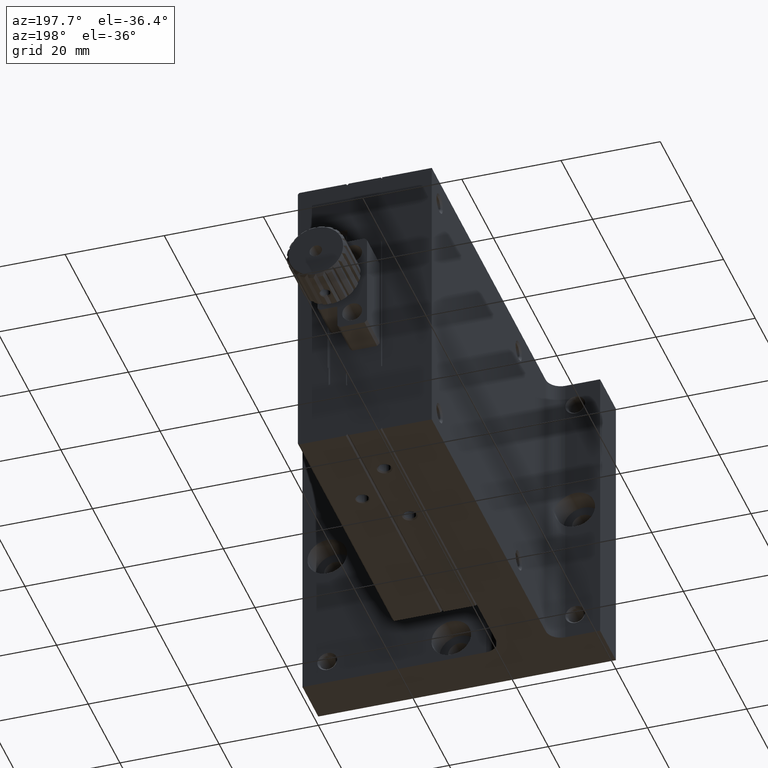
[diagram: clean part render]
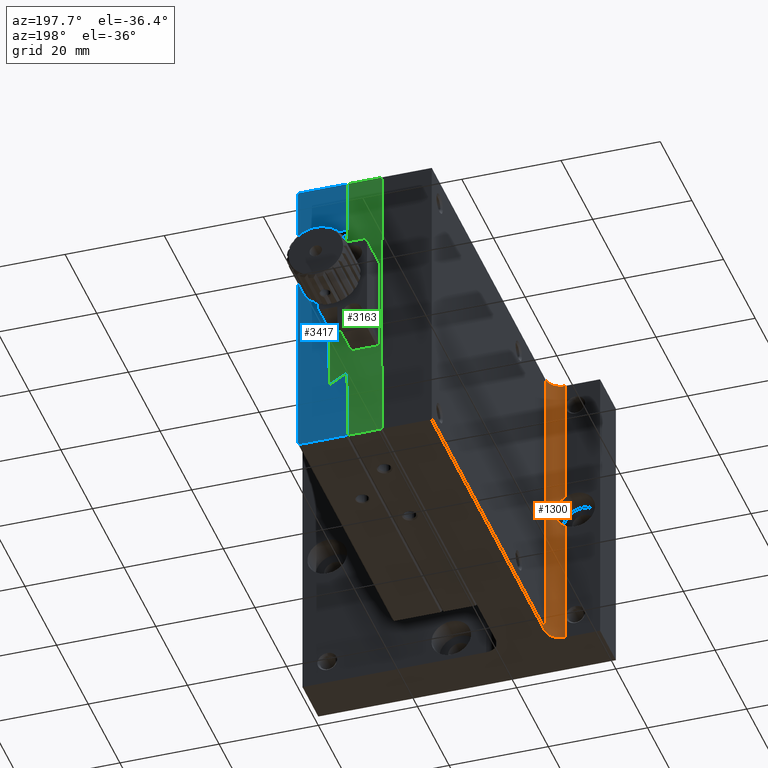
[diagram: same view with three faces highlighted in distinct colors, each labeled with its STEP entity id]
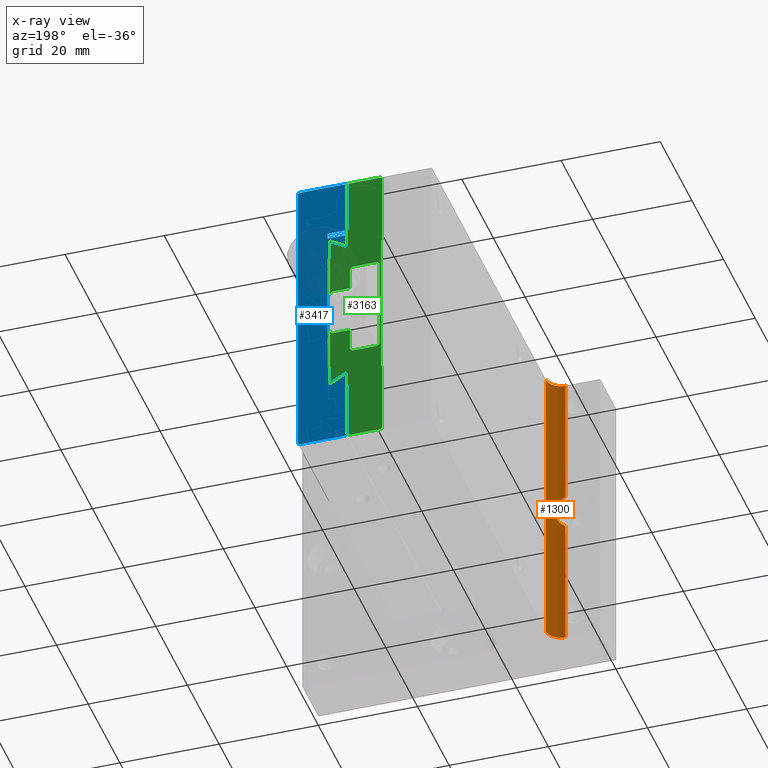
[diagram: x-ray of the same camera — body ghosted, the three highlighted faces saturated]
A machine part, auxiliary view with three faces highlighted in distinct colors.
The next image is the same camera in x-ray (body ghosted, the three faces saturated) — at least one of them is partly hidden behind the body in this view.
Their STEP definitions:

[orange] entity #1300 — the highlighted cylindrical surface (edge-blend (fillet) strip) has radius 3 mm, axis along (0, 0, 1).
#27 = EDGE_LOOP ( 'NONE', ( #8266, #9551, #5076, #129, #2946, #8076 ) ) ;
#129 = ORIENTED_EDGE ( 'NONE', *, *, #3257, .F. ) ;
#340 = FACE_OUTER_BOUND ( 'NONE', #27, .T. ) ;
#425 = DIRECTION ( 'NONE',  ( -0.000000000000000000, 0.000000000000000000, -1.000000000000000000 ) ) ;
#468 = CARTESIAN_POINT ( 'NONE',  ( 8.076887975370846462, 10.19765229357674485, -32.56169483567061462 ) ) ;
#578 = CARTESIAN_POINT ( 'NONE',  ( 8.940000019769701822, 10.71146632080361094, -29.28750962912575062 ) ) ;
#684 = CARTESIAN_POINT ( 'NONE',  ( 8.381142142787478377, 10.33501487928638518, -32.14418952201488366 ) ) ;
#940 = DIRECTION ( 'NONE',  ( 1.000000000000000000, 0.000000000000000000, 0.000000000000000000 ) ) ;
#1295 = CARTESIAN_POINT ( 'NONE',  ( 6.999999999999988454, 9.999999999999994671, -33.46410161513775705 ) ) ;
#1300 = ADVANCED_FACE ( 'NONE', ( #340 ), #6798, .F. ) ;
#1336 = CARTESIAN_POINT ( 'NONE',  ( 6.999999999999995559, 10.00000000000000000, -26.53589838486224295 ) ) ;
#1356 = VECTOR ( 'NONE', #3973, 1000.000000000000000 ) ;
#1937 = VERTEX_POINT ( 'NONE', #6447 ) ;
#2099 = CARTESIAN_POINT ( 'NONE',  ( 7.312159122410757384, 9.999999999999985789, -33.28387646178390469 ) ) ;
#2259 = CARTESIAN_POINT ( 'NONE',  ( 8.084193772606303341, 10.19093644093117135, -27.42885353740401300 ) ) ;
#2320 = CARTESIAN_POINT ( 'NONE',  ( 8.999841932630252117, 10.76379064294338939, -29.81888667577856467 ) ) ;
#2677 = DIRECTION ( 'NONE',  ( 0.000000000000000000, 0.000000000000000000, 1.000000000000000000 ) ) ;
#2911 = DIRECTION ( 'NONE',  ( 1.000000000000000000, -1.156482317317866992E-15, 0.000000000000000000 ) ) ;
#2946 = ORIENTED_EDGE ( 'NONE', *, *, #4669, .F. ) ;
#2974 = CARTESIAN_POINT ( 'NONE',  ( 7.597069705246282112, 10.04899120887526820, -33.06203030189791292 ) ) ;
#3136 = CARTESIAN_POINT ( 'NONE',  ( 8.987488742780781692, 10.75258482366023394, -29.63781743475101393 ) ) ;
#3257 = EDGE_CURVE ( 'NONE', #9720, #4130, #8382, .T. ) ;
#3330 = EDGE_CURVE ( 'NONE', #4130, #5293, #9275, .T. ) ;
#3528 = DIRECTION ( 'NONE',  ( 0.000000000000000000, 0.000000000000000000, 1.000000000000000000 ) ) ;
#3579 = CARTESIAN_POINT ( 'NONE',  ( 6.999999999999990230, 13.00000000000000178, -60.00000000000000000 ) ) ;
#3853 = CARTESIAN_POINT ( 'NONE',  ( 8.634497973715349772, 10.47674978689448366, -28.29492747798813568 ) ) ;
#3955 = CARTESIAN_POINT ( 'NONE',  ( 9.000154960391416381, 10.76407062309306362, -30.17406267576311762 ) ) ;
#3973 = DIRECTION ( 'NONE',  ( -0.000000000000000000, 0.000000000000000000, -1.000000000000000000 ) ) ;
#4130 = VERTEX_POINT ( 'NONE', #4247 ) ;
#4247 = CARTESIAN_POINT ( 'NONE',  ( 10.00000000000000000, 13.00000000000000000, -60.00000000000000000 ) ) ;
#4370 = CARTESIAN_POINT ( 'NONE',  ( 6.999999999999990230, 13.00000000000000178, -60.00000000000000000 ) ) ;
#4378 = CARTESIAN_POINT ( 'NONE',  ( 6.999999999999995559, 10.00000000000000000, 0.000000000000000000 ) ) ;
#4466 = VECTOR ( 'NONE', #425, 1000.000000000000000 ) ;
#4491 = DIRECTION ( 'NONE',  ( -0.000000000000000000, -0.000000000000000000, -1.000000000000000000 ) ) ;
#4669 = EDGE_CURVE ( 'NONE', #4724, #9720, #9439, .T. ) ;
#4724 = VERTEX_POINT ( 'NONE', #1295 ) ;
#4882 = LINE ( 'NONE', #7265, #1356 ) ;
#5076 = ORIENTED_EDGE ( 'NONE', *, *, #3330, .F. ) ;
#5293 = VERTEX_POINT ( 'NONE', #10618 ) ;
#5624 = CARTESIAN_POINT ( 'NONE',  ( 7.963981669359839977, 10.15623917660207631, -32.69165614810122378 ) ) ;
#5712 = EDGE_CURVE ( 'NONE', #9905, #1937, #4882, .T. ) ;
#5794 = AXIS2_PLACEMENT_3D ( 'NONE', #3579, #3528, #6661 ) ;
#5993 = B_SPLINE_CURVE_WITH_KNOTS ( 'NONE', 3,
 ( #1336, #8122, #7142, #2259, #10403, #3853, #10572, #7086, #578, #3136, #2320, #3955, #8012, #8770, #9593, #8825, #6281, #684, #7301, #468, #5624, #2974, #2099, #8723 ),
 .UNSPECIFIED., .F., .F.,
 ( 4, 2, 2, 2, 2, 2, 2, 2, 2, 2, 2, 4 ),
 ( 2.096074351170153978E-17, 0.001062721174830354165, 0.002125442349660689248, 0.003188163524491024331, 0.003719524111906186668, 0.004250884699321349006, 0.004782245286736512210, 0.005313605874151674548, 0.006376327048982011365, 0.006907687636397186713, 0.007439048223812361194, 0.008501769398642724032 ),
 .UNSPECIFIED. ) ;
#6281 = CARTESIAN_POINT ( 'NONE',  ( 8.638860312682433928, 10.47949724770066560, -31.69628394114670655 ) ) ;
#6387 = CARTESIAN_POINT ( 'NONE',  ( 6.999999999999995559, 10.00000000000000000, -60.00000000000000000 ) ) ;
#6447 = CARTESIAN_POINT ( 'NONE',  ( 6.999999999999995559, 10.00000000000000000, -26.53589838486224295 ) ) ;
#6661 = DIRECTION ( 'NONE',  ( 1.000000000000000000, 0.000000000000000000, 0.000000000000000000 ) ) ;
#6798 = CYLINDRICAL_SURFACE ( 'NONE', #7850, 3.000000000000011546 ) ;
#6821 = CARTESIAN_POINT ( 'NONE',  ( 10.00000000000000000, 12.99999999999999822, -60.00000000000000000 ) ) ;
#6923 = CARTESIAN_POINT ( 'NONE',  ( 6.999999999999990230, 13.00000000000000178, 0.000000000000000000 ) ) ;
#7086 = CARTESIAN_POINT ( 'NONE',  ( 8.905134346940171142, 10.68185414786063525, -29.11696030913898170 ) ) ;
#7142 = CARTESIAN_POINT ( 'NONE',  ( 7.589609238251441958, 10.04725971991858202, -26.93129190826723374 ) ) ;
#7250 = CIRCLE ( 'NONE', #7950, 3.000000000000011546 ) ;
#7265 = CARTESIAN_POINT ( 'NONE',  ( 7.000000000000000000, 10.00000000000000000, -60.00000000000000000 ) ) ;
#7301 = CARTESIAN_POINT ( 'NONE',  ( 8.285217367456340298, 10.28687326179137429, -32.28842017397296615 ) ) ;
#7690 = DIRECTION ( 'NONE',  ( 0.000000000000000000, 0.000000000000000000, 1.000000000000000000 ) ) ;
#7801 = CARTESIAN_POINT ( 'NONE',  ( 7.000000000000000000, 10.00000000000000000, -60.00000000000000000 ) ) ;
#7850 = AXIS2_PLACEMENT_3D ( 'NONE', #4370, #2677, #940 ) ;
#7950 = AXIS2_PLACEMENT_3D ( 'NONE', #6923, #4491, #2911 ) ;
#8012 = CARTESIAN_POINT ( 'NONE',  ( 8.988539074249068506, 10.75352584394124200, -30.35006438806567175 ) ) ;
#8076 = ORIENTED_EDGE ( 'NONE', *, *, #9651, .F. ) ;
#8122 = CARTESIAN_POINT ( 'NONE',  ( 7.312148503375356157, 9.999999999999985789, -26.71611740731314200 ) ) ;
#8266 = ORIENTED_EDGE ( 'NONE', *, *, #5712, .F. ) ;
#8382 = CIRCLE ( 'NONE', #5794, 3.000000000000011546 ) ;
#8458 = EDGE_CURVE ( 'NONE', #5293, #9905, #7250, .T. ) ;
#8723 = CARTESIAN_POINT ( 'NONE',  ( 6.999999999999988454, 9.999999999999994671, -33.46410161513775705 ) ) ;
#8770 = CARTESIAN_POINT ( 'NONE',  ( 8.942366245519268730, 10.71348580762711222, -30.69909756743512119 ) ) ;
#8825 = CARTESIAN_POINT ( 'NONE',  ( 8.770366646569348390, 10.57525945648404786, -31.38096871985507974 ) ) ;
#9259 = VECTOR ( 'NONE', #7690, 1000.000000000000000 ) ;
#9275 = LINE ( 'NONE', #6821, #9259 ) ;
#9439 = LINE ( 'NONE', #7801, #4466 ) ;
#9551 = ORIENTED_EDGE ( 'NONE', *, *, #8458, .F. ) ;
#9593 = CARTESIAN_POINT ( 'NONE',  ( 8.907359928884956091, 10.68367331894920369, -30.87362646470863581 ) ) ;
#9651 = EDGE_CURVE ( 'NONE', #1937, #4724, #5993, .T. ) ;
#9720 = VERTEX_POINT ( 'NONE', #6387 ) ;
#9905 = VERTEX_POINT ( 'NONE', #4378 ) ;
#10403 = CARTESIAN_POINT ( 'NONE',  ( 8.292487705944772358, 10.28562147186538489, -27.70296440330946908 ) ) ;
#10572 = CARTESIAN_POINT ( 'NONE',  ( 8.769152334939166238, 10.57441794562466875, -28.61695114722085265 ) ) ;
#10618 = CARTESIAN_POINT ( 'NONE',  ( 10.00000000000000000, 13.00000000000000000, 0.000000000000000000 ) ) ;

[blue] entity #3417 — the highlighted planar face has unit normal (0, -1, 0).
#51 = ORIENTED_EDGE ( 'NONE', *, *, #4232, .F. ) ;
#64 = CARTESIAN_POINT ( 'NONE',  ( 26.99999999999999645, 85.00000000000000000, -59.69999999999999574 ) ) ;
#199 = VERTEX_POINT ( 'NONE', #64 ) ;
#282 = CARTESIAN_POINT ( 'NONE',  ( 27.30000000000000782, 85.00000000000000000, -47.99999999999999289 ) ) ;
#298 = CARTESIAN_POINT ( 'NONE',  ( 26.99999999999999645, 85.00000000000000000, -47.99999999999999289 ) ) ;
#477 = CARTESIAN_POINT ( 'NONE',  ( 31.00000000000000000, 85.00000000000000000, -10.99999999999999289 ) ) ;
#480 = VECTOR ( 'NONE', #6643, 1000.000000000000000 ) ;
#561 = VERTEX_POINT ( 'NONE', #8301 ) ;
#569 = LINE ( 'NONE', #2090, #9409 ) ;
#621 = CARTESIAN_POINT ( 'NONE',  ( 30.80000000000000782, 85.00000000000000000, 7.347880794884119933E-15 ) ) ;
#634 = LINE ( 'NONE', #3247, #3448 ) ;
#674 = LINE ( 'NONE', #9032, #6780 ) ;
#705 = ORIENTED_EDGE ( 'NONE', *, *, #4442, .F. ) ;
#833 = LINE ( 'NONE', #3071, #8966 ) ;
#898 = ORIENTED_EDGE ( 'NONE', *, *, #6077, .T. ) ;
#991 = EDGE_CURVE ( 'NONE', #8866, #9744, #6757, .T. ) ;
#1031 = ORIENTED_EDGE ( 'NONE', *, *, #991, .F. ) ;
#1050 = CARTESIAN_POINT ( 'NONE',  ( 27.30000000000000782, 85.00000000000000000, -12.19999999999999218 ) ) ;
#1062 = CARTESIAN_POINT ( 'NONE',  ( 30.80000000000000782, 85.00000000000001421, -12.80599999999998673 ) ) ;
#1128 = ORIENTED_EDGE ( 'NONE', *, *, #1142, .F. ) ;
#1134 = CARTESIAN_POINT ( 'NONE',  ( 37.00000000000000000, 85.00000000000000000, -6.800957556051679009E-15 ) ) ;
#1142 = EDGE_CURVE ( 'NONE', #10536, #561, #569, .T. ) ;
#1188 = VECTOR ( 'NONE', #4925, 1000.000000000000114 ) ;
#1259 = VECTOR ( 'NONE', #2640, 1000.000000000000000 ) ;
#1320 = VECTOR ( 'NONE', #9230, 1000.000000000000000 ) ;
#1337 = VERTEX_POINT ( 'NONE', #282 ) ;
#1416 = VECTOR ( 'NONE', #4893, 1000.000000000000000 ) ;
#1543 = EDGE_CURVE ( 'NONE', #8533, #199, #8802, .T. ) ;
#1677 = VECTOR ( 'NONE', #9374, 1000.000000000000000 ) ;
#1778 = VERTEX_POINT ( 'NONE', #1796 ) ;
#1796 = CARTESIAN_POINT ( 'NONE',  ( 36.69999999999997442, 85.00000000000000000, -59.99999999999999289 ) ) ;
#1807 = ORIENTED_EDGE ( 'NONE', *, *, #4932, .T. ) ;
#1868 = EDGE_CURVE ( 'NONE', #10120, #9852, #2375, .T. ) ;
#1880 = DIRECTION ( 'NONE',  ( -1.000000000000000000, -0.000000000000000000, -0.000000000000000000 ) ) ;
#2090 = CARTESIAN_POINT ( 'NONE',  ( 26.99999999999999645, 85.00000000000000000, 7.347880794884119933E-15 ) ) ;
#2212 = VECTOR ( 'NONE', #9107, 1000.000000000000000 ) ;
#2288 = EDGE_CURVE ( 'NONE', #10120, #2547, #3847, .T. ) ;
#2375 = LINE ( 'NONE', #477, #10432 ) ;
#2428 = CARTESIAN_POINT ( 'NONE',  ( 27.30000000000000782, 85.00000000000000000, -47.99999999999999289 ) ) ;
#2547 = VERTEX_POINT ( 'NONE', #1050 ) ;
#2629 = VERTEX_POINT ( 'NONE', #7067 ) ;
#2640 = DIRECTION ( 'NONE',  ( 0.000000000000000000, 0.000000000000000000, -1.000000000000000000 ) ) ;
#2695 = LINE ( 'NONE', #6006, #10346 ) ;
#2704 = VECTOR ( 'NONE', #5049, 1000.000000000000000 ) ;
#2711 = LINE ( 'NONE', #6831, #2704 ) ;
#2968 = CARTESIAN_POINT ( 'NONE',  ( 36.99999999999999289, 85.00000000000000000, -59.69999999999999574 ) ) ;
#3010 = VERTEX_POINT ( 'NONE', #8415 ) ;
#3071 = CARTESIAN_POINT ( 'NONE',  ( 30.99999999999998934, 85.00000000000000000, -43.00000000000000000 ) ) ;
#3183 = DIRECTION ( 'NONE',  ( 0.000000000000000000, 0.000000000000000000, -1.000000000000000000 ) ) ;
#3247 = CARTESIAN_POINT ( 'NONE',  ( 26.99999999999999645, 85.00000000000000000, -59.69999999999999574 ) ) ;
#3309 = DIRECTION ( 'NONE',  ( 0.000000000000000000, 0.000000000000000000, -1.000000000000000000 ) ) ;
#3417 = ADVANCED_FACE ( 'NONE', ( #6426 ), #4592, .F. ) ;
#3448 = VECTOR ( 'NONE', #9763, 999.9999999999998863 ) ;
#3542 = LINE ( 'NONE', #1134, #1320 ) ;
#3543 = ORIENTED_EDGE ( 'NONE', *, *, #1543, .F. ) ;
#3684 = CARTESIAN_POINT ( 'NONE',  ( 37.00000000000000000, 85.00000000000000000, -0.3000000000000146438 ) ) ;
#3847 = LINE ( 'NONE', #4760, #6804 ) ;
#3877 = VERTEX_POINT ( 'NONE', #5484 ) ;
#3895 = AXIS2_PLACEMENT_3D ( 'NONE', #7944, #9582, #6371 ) ;
#3915 = CARTESIAN_POINT ( 'NONE',  ( 26.99999999999999645, 85.00000000000000000, -0.3000000000000161982 ) ) ;
#3948 = DIRECTION ( 'NONE',  ( 1.000000000000000000, 0.000000000000000000, 0.000000000000000000 ) ) ;
#3957 = VECTOR ( 'NONE', #5841, 1000.000000000000114 ) ;
#4007 = DIRECTION ( 'NONE',  ( 1.000000000000000000, 0.000000000000000000, 0.000000000000000000 ) ) ;
#4056 = LINE ( 'NONE', #621, #6883 ) ;
#4206 = EDGE_CURVE ( 'NONE', #3877, #3010, #3542, .T. ) ;
#4232 = EDGE_CURVE ( 'NONE', #4593, #1337, #2711, .T. ) ;
#4442 = EDGE_CURVE ( 'NONE', #2547, #9203, #9003, .T. ) ;
#4445 = ORIENTED_EDGE ( 'NONE', *, *, #6793, .T. ) ;
#4592 = PLANE ( 'NONE',  #3895 ) ;
#4593 = VERTEX_POINT ( 'NONE', #9277 ) ;
#4759 = LINE ( 'NONE', #2968, #9524 ) ;
#4760 = CARTESIAN_POINT ( 'NONE',  ( 37.00000000000000000, 85.00000000000000000, -12.19999999999999218 ) ) ;
#4893 = DIRECTION ( 'NONE',  ( 0.000000000000000000, 0.000000000000000000, -1.000000000000000000 ) ) ;
#4925 = DIRECTION ( 'NONE',  ( 0.8659960399471574588, 0.000000000000000000, 0.5000508562094871934 ) ) ;
#4932 = EDGE_CURVE ( 'NONE', #8533, #1337, #9859, .T. ) ;
#5049 = DIRECTION ( 'NONE',  ( 0.000000000000000000, 0.000000000000000000, -1.000000000000000000 ) ) ;
#5096 = LINE ( 'NONE', #8398, #8634 ) ;
#5183 = EDGE_CURVE ( 'NONE', #2629, #3877, #7731, .T. ) ;
#5314 = EDGE_CURVE ( 'NONE', #10317, #8414, #4056, .T. ) ;
#5484 = CARTESIAN_POINT ( 'NONE',  ( 36.69999999999998863, 85.00000000000000000, -6.938109130871112675E-15 ) ) ;
#5616 = DIRECTION ( 'NONE',  ( 1.000000000000000000, 0.000000000000000000, 0.000000000000000000 ) ) ;
#5761 = CARTESIAN_POINT ( 'NONE',  ( 27.30000000000000782, 85.00000000000000000, -14.82699999999999285 ) ) ;
#5762 = VERTEX_POINT ( 'NONE', #6130 ) ;
#5841 = DIRECTION ( 'NONE',  ( -0.8659960399471572368, 0.000000000000000000, 0.5000508562094875264 ) ) ;
#6006 = CARTESIAN_POINT ( 'NONE',  ( 30.80000000000000782, 85.00000000000000000, -16.99999999999999289 ) ) ;
#6077 = EDGE_CURVE ( 'NONE', #10511, #199, #634, .T. ) ;
#6130 = CARTESIAN_POINT ( 'NONE',  ( 30.80000000000000782, 85.00000000000000000, -16.99999999999999289 ) ) ;
#6182 = EDGE_CURVE ( 'NONE', #8414, #4593, #8443, .T. ) ;
#6228 = CARTESIAN_POINT ( 'NONE',  ( 30.99999999999999289, 85.00000000000000000, -43.00000000000000000 ) ) ;
#6280 = VERTEX_POINT ( 'NONE', #6816 ) ;
#6287 = EDGE_CURVE ( 'NONE', #8866, #5762, #2695, .T. ) ;
#6296 = VERTEX_POINT ( 'NONE', #1062 ) ;
#6371 = DIRECTION ( 'NONE',  ( 0.000000000000000000, 0.000000000000000000, -1.000000000000000000 ) ) ;
#6426 = FACE_OUTER_BOUND ( 'NONE', #9013, .T. ) ;
#6434 = DIRECTION ( 'NONE',  ( -1.000000000000000000, -0.000000000000000000, -0.000000000000000000 ) ) ;
#6494 = EDGE_CURVE ( 'NONE', #10317, #9744, #833, .T. ) ;
#6633 = EDGE_CURVE ( 'NONE', #1778, #6280, #6747, .T. ) ;
#6643 = DIRECTION ( 'NONE',  ( 0.7071067811865699992, 0.000000000000000000, 0.7071067811865251462 ) ) ;
#6679 = EDGE_CURVE ( 'NONE', #6296, #5762, #6769, .T. ) ;
#6705 = CARTESIAN_POINT ( 'NONE',  ( 30.80000000000000782, 85.00000000000000000, -47.19400000000000261 ) ) ;
#6747 = LINE ( 'NONE', #10064, #480 ) ;
#6757 = LINE ( 'NONE', #10075, #1259 ) ;
#6759 = CARTESIAN_POINT ( 'NONE',  ( 27.30000000000000782, 85.00000000000000000, -14.82699999999999285 ) ) ;
#6769 = LINE ( 'NONE', #10083, #2212 ) ;
#6780 = VECTOR ( 'NONE', #5616, 1000.000000000000000 ) ;
#6793 = EDGE_CURVE ( 'NONE', #10536, #3010, #5096, .T. ) ;
#6804 = VECTOR ( 'NONE', #6434, 1000.000000000000000 ) ;
#6816 = CARTESIAN_POINT ( 'NONE',  ( 36.99999999999998579, 85.00000000000000000, -59.69999999999999574 ) ) ;
#6831 = CARTESIAN_POINT ( 'NONE',  ( 27.30000000000000782, 85.00000000000000000, 7.347880794884119933E-15 ) ) ;
#6861 = ORIENTED_EDGE ( 'NONE', *, *, #10711, .F. ) ;
#6883 = VECTOR ( 'NONE', #3183, 1000.000000000000000 ) ;
#6977 = DIRECTION ( 'NONE',  ( -0.7071067811865511255, 0.000000000000000000, 0.7071067811865440200 ) ) ;
#7067 = CARTESIAN_POINT ( 'NONE',  ( 37.00000000000000000, 85.00000000000000000, -0.3000000000000140332 ) ) ;
#7229 = VECTOR ( 'NONE', #6977, 1000.000000000000000 ) ;
#7615 = CARTESIAN_POINT ( 'NONE',  ( 31.00000000000000000, 85.00000000000000000, -16.99999999999999289 ) ) ;
#7622 = ORIENTED_EDGE ( 'NONE', *, *, #1868, .T. ) ;
#7670 = ORIENTED_EDGE ( 'NONE', *, *, #5314, .F. ) ;
#7731 = LINE ( 'NONE', #3684, #7229 ) ;
#7785 = ORIENTED_EDGE ( 'NONE', *, *, #6182, .F. ) ;
#7821 = VECTOR ( 'NONE', #3948, 1000.000000000000000 ) ;
#7840 = CARTESIAN_POINT ( 'NONE',  ( 31.00000000000000000, 85.00000000000000000, -12.19999999999999218 ) ) ;
#7895 = DIRECTION ( 'NONE',  ( 0.000000000000000000, 0.000000000000000000, -1.000000000000000000 ) ) ;
#7944 = CARTESIAN_POINT ( 'NONE',  ( 37.00000000000000000, 85.00000000000000000, 7.347880794884119933E-15 ) ) ;
#8127 = DIRECTION ( 'NONE',  ( 0.000000000000000000, 0.000000000000000000, 1.000000000000000000 ) ) ;
#8177 = ORIENTED_EDGE ( 'NONE', *, *, #6633, .F. ) ;
#8301 = CARTESIAN_POINT ( 'NONE',  ( 26.99999999999999645, 85.00000000000000000, -10.99999999999999289 ) ) ;
#8309 = CARTESIAN_POINT ( 'NONE',  ( 26.99999999999999645, 85.00000000000000000, 7.347880794884119933E-15 ) ) ;
#8356 = EDGE_CURVE ( 'NONE', #9203, #6296, #9102, .T. ) ;
#8389 = CARTESIAN_POINT ( 'NONE',  ( 30.80000000000000782, 85.00000000000000000, -47.19400000000000972 ) ) ;
#8398 = CARTESIAN_POINT ( 'NONE',  ( 27.30000000000000782, 85.00000000000000000, -5.675066525144979984E-15 ) ) ;
#8414 = VERTEX_POINT ( 'NONE', #8389 ) ;
#8415 = CARTESIAN_POINT ( 'NONE',  ( 27.30000000000000782, 85.00000000000000000, -5.969132245676635597E-15 ) ) ;
#8443 = LINE ( 'NONE', #6705, #3957 ) ;
#8533 = VERTEX_POINT ( 'NONE', #298 ) ;
#8634 = VECTOR ( 'NONE', #9438, 1000.000000000000000 ) ;
#8691 = EDGE_CURVE ( 'NONE', #2629, #6280, #4759, .T. ) ;
#8762 = DIRECTION ( 'NONE',  ( -1.227396053628219999E-16, -0.000000000000000000, -1.000000000000000000 ) ) ;
#8802 = LINE ( 'NONE', #8309, #1416 ) ;
#8866 = VERTEX_POINT ( 'NONE', #7615 ) ;
#8875 = CARTESIAN_POINT ( 'NONE',  ( 37.00000000000000000, 85.00000000000000000, -59.99999999999999289 ) ) ;
#8966 = VECTOR ( 'NONE', #4007, 1000.000000000000000 ) ;
#9003 = LINE ( 'NONE', #9770, #9480 ) ;
#9013 = EDGE_LOOP ( 'NONE', ( #9080, #9090, #8177, #6861, #898, #3543, #1807, #51, #7785, #7670, #10271, #1031, #10464, #9579, #9418, #705, #10694, #7622, #9870, #1128, #4445, #10657 ) ) ;
#9032 = CARTESIAN_POINT ( 'NONE',  ( 37.00000000000000000, 85.00000000000000000, -10.99999999999999289 ) ) ;
#9044 = CARTESIAN_POINT ( 'NONE',  ( 31.00000000000000000, 85.00000000000000000, -10.99999999999999289 ) ) ;
#9080 = ORIENTED_EDGE ( 'NONE', *, *, #5183, .F. ) ;
#9090 = ORIENTED_EDGE ( 'NONE', *, *, #8691, .T. ) ;
#9102 = LINE ( 'NONE', #6759, #1188 ) ;
#9107 = DIRECTION ( 'NONE',  ( 0.000000000000000000, 0.000000000000000000, -1.000000000000000000 ) ) ;
#9203 = VERTEX_POINT ( 'NONE', #5761 ) ;
#9230 = DIRECTION ( 'NONE',  ( -1.000000000000000000, -0.000000000000000000, -0.000000000000000000 ) ) ;
#9277 = CARTESIAN_POINT ( 'NONE',  ( 27.30000000000000426, 85.00000000000001421, -45.17300000000000182 ) ) ;
#9374 = DIRECTION ( 'NONE',  ( 1.000000000000000000, 0.000000000000000000, 0.000000000000000000 ) ) ;
#9409 = VECTOR ( 'NONE', #7895, 1000.000000000000000 ) ;
#9418 = ORIENTED_EDGE ( 'NONE', *, *, #8356, .F. ) ;
#9438 = DIRECTION ( 'NONE',  ( 0.7071067811865480168, 0.000000000000000000, 0.7071067811865470176 ) ) ;
#9480 = VECTOR ( 'NONE', #3309, 1000.000000000000000 ) ;
#9524 = VECTOR ( 'NONE', #8762, 1000.000000000000000 ) ;
#9579 = ORIENTED_EDGE ( 'NONE', *, *, #6679, .F. ) ;
#9582 = DIRECTION ( 'NONE',  ( 0.000000000000000000, -1.000000000000000000, 0.000000000000000000 ) ) ;
#9605 = CARTESIAN_POINT ( 'NONE',  ( 27.29999999999999716, 85.00000000000000000, -59.99999999999999289 ) ) ;
#9689 = LINE ( 'NONE', #8875, #7821 ) ;
#9744 = VERTEX_POINT ( 'NONE', #6228 ) ;
#9763 = DIRECTION ( 'NONE',  ( -0.7071067811865431318, 0.000000000000000000, 0.7071067811865520136 ) ) ;
#9770 = CARTESIAN_POINT ( 'NONE',  ( 27.30000000000000782, 85.00000000000000000, 7.347880794884119933E-15 ) ) ;
#9852 = VERTEX_POINT ( 'NONE', #9044 ) ;
#9859 = LINE ( 'NONE', #2428, #1677 ) ;
#9870 = ORIENTED_EDGE ( 'NONE', *, *, #10590, .F. ) ;
#9942 = CARTESIAN_POINT ( 'NONE',  ( 30.80000000000000782, 85.00000000000000000, -43.00000000000000000 ) ) ;
#10064 = CARTESIAN_POINT ( 'NONE',  ( 36.69999999999997442, 85.00000000000000000, -59.99999999999999289 ) ) ;
#10075 = CARTESIAN_POINT ( 'NONE',  ( 31.00000000000000000, 85.00000000000000000, 7.347880794884119933E-15 ) ) ;
#10083 = CARTESIAN_POINT ( 'NONE',  ( 30.80000000000000782, 85.00000000000000000, 7.347880794884119933E-15 ) ) ;
#10120 = VERTEX_POINT ( 'NONE', #7840 ) ;
#10271 = ORIENTED_EDGE ( 'NONE', *, *, #6494, .T. ) ;
#10317 = VERTEX_POINT ( 'NONE', #9942 ) ;
#10346 = VECTOR ( 'NONE', #1880, 1000.000000000000000 ) ;
#10432 = VECTOR ( 'NONE', #8127, 1000.000000000000000 ) ;
#10464 = ORIENTED_EDGE ( 'NONE', *, *, #6287, .T. ) ;
#10511 = VERTEX_POINT ( 'NONE', #9605 ) ;
#10536 = VERTEX_POINT ( 'NONE', #3915 ) ;
#10590 = EDGE_CURVE ( 'NONE', #561, #9852, #674, .T. ) ;
#10657 = ORIENTED_EDGE ( 'NONE', *, *, #4206, .F. ) ;
#10694 = ORIENTED_EDGE ( 'NONE', *, *, #2288, .F. ) ;
#10711 = EDGE_CURVE ( 'NONE', #10511, #1778, #9689, .T. ) ;

[green] entity #3163 — the highlighted planar face has unit normal (0, -1, 0).
#4 = DIRECTION ( 'NONE',  ( 0.7071067811865474617, -0.000000000000000000, -0.7071067811865474617 ) ) ;
#34 = VERTEX_POINT ( 'NONE', #4797 ) ;
#120 = CARTESIAN_POINT ( 'NONE',  ( 27.00000000000000000, 85.00000000000000000, 7.347880794884119933E-15 ) ) ;
#138 = CARTESIAN_POINT ( 'NONE',  ( 30.00000000000000000, 85.00000000000000000, -34.99999999999999289 ) ) ;
#150 = ORIENTED_EDGE ( 'NONE', *, *, #10175, .F. ) ;
#173 = VECTOR ( 'NONE', #2246, 1000.000000000000000 ) ;
#188 = ORIENTED_EDGE ( 'NONE', *, *, #1417, .F. ) ;
#193 = CARTESIAN_POINT ( 'NONE',  ( 26.00000000000000355, 85.00000000000000000, -39.99999999999999289 ) ) ;
#284 = EDGE_CURVE ( 'NONE', #3719, #2758, #5225, .T. ) ;
#296 = EDGE_CURVE ( 'NONE', #4693, #1869, #4417, .T. ) ;
#309 = VERTEX_POINT ( 'NONE', #2669 ) ;
#323 = VERTEX_POINT ( 'NONE', #1961 ) ;
#380 = CARTESIAN_POINT ( 'NONE',  ( 21.00000000000000000, 85.00000000000000000, -39.99999999999999289 ) ) ;
#422 = ORIENTED_EDGE ( 'NONE', *, *, #8072, .F. ) ;
#429 = EDGE_CURVE ( 'NONE', #6291, #3153, #7008, .T. ) ;
#488 = VECTOR ( 'NONE', #3912, 1000.000000000000000 ) ;
#509 = EDGE_CURVE ( 'NONE', #3376, #5435, #6464, .T. ) ;
#511 = VERTEX_POINT ( 'NONE', #8949 ) ;
#531 = EDGE_CURVE ( 'NONE', #511, #9004, #9875, .T. ) ;
#535 = LINE ( 'NONE', #5471, #1574 ) ;
#537 = VERTEX_POINT ( 'NONE', #4134 ) ;
#595 = LINE ( 'NONE', #7054, #3306 ) ;
#688 = DIRECTION ( 'NONE',  ( -1.000000000000000000, -0.000000000000000000, -0.000000000000000000 ) ) ;
#751 = EDGE_CURVE ( 'NONE', #5084, #4350, #7462, .T. ) ;
#778 = DIRECTION ( 'NONE',  ( -0.000000000000000000, -0.000000000000000000, 1.000000000000000000 ) ) ;
#812 = CARTESIAN_POINT ( 'NONE',  ( 30.50000000000000000, 85.00000000000000000, -25.49999999999999645 ) ) ;
#860 = ORIENTED_EDGE ( 'NONE', *, *, #6259, .F. ) ;
#883 = CARTESIAN_POINT ( 'NONE',  ( 26.50000000000000355, 85.00000000000000000, -20.49999999999999289 ) ) ;
#894 = VERTEX_POINT ( 'NONE', #6002 ) ;
#927 = CARTESIAN_POINT ( 'NONE',  ( 21.00000000000000000, 85.00000000000000000, -19.99999999999999289 ) ) ;
#949 = CARTESIAN_POINT ( 'NONE',  ( 27.00000000000000000, 85.00000000000000000, -47.49999999999999289 ) ) ;
#970 = VERTEX_POINT ( 'NONE', #7625 ) ;
#987 = LINE ( 'NONE', #120, #2274 ) ;
#1032 = LINE ( 'NONE', #4459, #10577 ) ;
#1033 = CARTESIAN_POINT ( 'NONE',  ( 26.00000000000000355, 85.00000000000000000, -19.99999999999999289 ) ) ;
#1070 = CARTESIAN_POINT ( 'NONE',  ( 30.49999999999999645, 85.00000000000001421, -47.02100000000000080 ) ) ;
#1159 = CARTESIAN_POINT ( 'NONE',  ( 20.50000000000000000, 85.00000000000000000, 7.347880794884119933E-15 ) ) ;
#1194 = EDGE_CURVE ( 'NONE', #5435, #323, #10719, .T. ) ;
#1335 = ORIENTED_EDGE ( 'NONE', *, *, #4162, .T. ) ;
#1350 = ORIENTED_EDGE ( 'NONE', *, *, #3129, .F. ) ;
#1353 = EDGE_CURVE ( 'NONE', #4607, #4081, #987, .T. ) ;
#1360 = DIRECTION ( 'NONE',  ( 0.000000000000000000, 0.000000000000000000, -1.000000000000000000 ) ) ;
#1369 = VERTEX_POINT ( 'NONE', #5878 ) ;
#1417 = EDGE_CURVE ( 'NONE', #4350, #894, #5231, .T. ) ;
#1567 = VECTOR ( 'NONE', #10229, 1000.000000000000000 ) ;
#1574 = VECTOR ( 'NONE', #8782, 1000.000000000000000 ) ;
#1684 = CARTESIAN_POINT ( 'NONE',  ( 27.09999999999999076, 85.00000000000000000, -12.49999999999999289 ) ) ;
#1713 = ORIENTED_EDGE ( 'NONE', *, *, #7400, .F. ) ;
#1720 = VECTOR ( 'NONE', #6965, 1000.000000000000000 ) ;
#1755 = VECTOR ( 'NONE', #8540, 1000.000000000000000 ) ;
#1803 = VECTOR ( 'NONE', #4395, 1000.000000000000114 ) ;
#1869 = VERTEX_POINT ( 'NONE', #8019 ) ;
#1870 = LINE ( 'NONE', #1159, #4179 ) ;
#1905 = PLANE ( 'NONE',  #4230 ) ;
#1946 = VERTEX_POINT ( 'NONE', #138 ) ;
#1953 = LINE ( 'NONE', #5916, #4450 ) ;
#1961 = CARTESIAN_POINT ( 'NONE',  ( 26.50000000000000355, 85.00000000000000000, -20.49999999999999289 ) ) ;
#1973 = DIRECTION ( 'NONE',  ( -0.000000000000000000, -0.000000000000000000, 1.000000000000000000 ) ) ;
#2177 = CARTESIAN_POINT ( 'NONE',  ( 30.50000000000000000, 85.00000000000000000, -12.97999999999999332 ) ) ;
#2246 = DIRECTION ( 'NONE',  ( 1.000000000000000000, 0.000000000000000000, 0.000000000000000000 ) ) ;
#2274 = VECTOR ( 'NONE', #6097, 1000.000000000000000 ) ;
#2398 = ORIENTED_EDGE ( 'NONE', *, *, #509, .F. ) ;
#2406 = LINE ( 'NONE', #2560, #6830 ) ;
#2459 = ORIENTED_EDGE ( 'NONE', *, *, #10358, .F. ) ;
#2462 = VECTOR ( 'NONE', #6792, 1000.000000000000000 ) ;
#2486 = VECTOR ( 'NONE', #2615, 1000.000000000000000 ) ;
#2560 = CARTESIAN_POINT ( 'NONE',  ( 20.00000000000000000, 85.00000000000000000, -24.99999999999999289 ) ) ;
#2615 = DIRECTION ( 'NONE',  ( 0.7071067811865470176, 0.000000000000000000, 0.7071067811865480168 ) ) ;
#2622 = ORIENTED_EDGE ( 'NONE', *, *, #8061, .T. ) ;
#2669 = CARTESIAN_POINT ( 'NONE',  ( 26.50000000000000000, 85.00000000000000000, -39.50000000000000000 ) ) ;
#2674 = ORIENTED_EDGE ( 'NONE', *, *, #531, .F. ) ;
#2732 = VERTEX_POINT ( 'NONE', #6909 ) ;
#2758 = VERTEX_POINT ( 'NONE', #10328 ) ;
#2759 = CARTESIAN_POINT ( 'NONE',  ( 27.00000000000000000, 85.00000000000000000, -59.69999999999999574 ) ) ;
#2795 = EDGE_CURVE ( 'NONE', #34, #10125, #5340, .T. ) ;
#2832 = VECTOR ( 'NONE', #1973, 1000.000000000000000 ) ;
#2854 = VERTEX_POINT ( 'NONE', #3936 ) ;
#2875 = VERTEX_POINT ( 'NONE', #3886 ) ;
#2932 = LINE ( 'NONE', #6186, #5219 ) ;
#3061 = LINE ( 'NONE', #6370, #173 ) ;
#3085 = FACE_OUTER_BOUND ( 'NONE', #4262, .T. ) ;
#3089 = ORIENTED_EDGE ( 'NONE', *, *, #10661, .F. ) ;
#3103 = VECTOR ( 'NONE', #6651, 1000.000000000000114 ) ;
#3120 = VECTOR ( 'NONE', #4634, 999.9999999999998863 ) ;
#3129 = EDGE_CURVE ( 'NONE', #7535, #3376, #8368, .T. ) ;
#3153 = VERTEX_POINT ( 'NONE', #9509 ) ;
#3163 = ADVANCED_FACE ( 'NONE', ( #3085 ), #1905, .F. ) ;
#3188 = ORIENTED_EDGE ( 'NONE', *, *, #9965, .F. ) ;
#3268 = VERTEX_POINT ( 'NONE', #1070 ) ;
#3278 = EDGE_CURVE ( 'NONE', #309, #5084, #9329, .T. ) ;
#3306 = VECTOR ( 'NONE', #1360, 1000.000000000000000 ) ;
#3353 = ORIENTED_EDGE ( 'NONE', *, *, #7098, .F. ) ;
#3376 = VERTEX_POINT ( 'NONE', #3410 ) ;
#3410 = CARTESIAN_POINT ( 'NONE',  ( 21.00000000000000000, 85.00000000000000000, -19.99999999999999289 ) ) ;
#3435 = CARTESIAN_POINT ( 'NONE',  ( 20.00000000000000000, 85.00000000000000000, -44.99999999999999289 ) ) ;
#3471 = ORIENTED_EDGE ( 'NONE', *, *, #1194, .F. ) ;
#3487 = LINE ( 'NONE', #10151, #4676 ) ;
#3509 = ORIENTED_EDGE ( 'NONE', *, *, #10478, .F. ) ;
#3527 = VERTEX_POINT ( 'NONE', #4695 ) ;
#3599 = EDGE_CURVE ( 'NONE', #4377, #2875, #2406, .T. ) ;
#3631 = LINE ( 'NONE', #7734, #7567 ) ;
#3668 = CARTESIAN_POINT ( 'NONE',  ( 26.50000000000000355, 85.00000000000000000, 7.347880794884119933E-15 ) ) ;
#3719 = VERTEX_POINT ( 'NONE', #5933 ) ;
#3732 = CARTESIAN_POINT ( 'NONE',  ( 27.00000000000000000, 85.00000000000000000, -0.2999999999999756195 ) ) ;
#3850 = EDGE_CURVE ( 'NONE', #2854, #6066, #10375, .T. ) ;
#3886 = CARTESIAN_POINT ( 'NONE',  ( 30.00000000000000355, 85.00000000000000000, -24.99999999999999289 ) ) ;
#3904 = ORIENTED_EDGE ( 'NONE', *, *, #5941, .F. ) ;
#3912 = DIRECTION ( 'NONE',  ( 0.8660244017887929191, 0.000000000000000000, -0.5000017355033513633 ) ) ;
#3936 = CARTESIAN_POINT ( 'NONE',  ( 30.50000000000000000, 85.00000000000000000, -12.97999999999999332 ) ) ;
#3967 = ORIENTED_EDGE ( 'NONE', *, *, #3599, .F. ) ;
#3985 = CARTESIAN_POINT ( 'NONE',  ( 26.70000000000002061, 85.00000000000000000, -59.99999999999999289 ) ) ;
#3995 = VECTOR ( 'NONE', #4, 1000.000000000000114 ) ;
#4081 = VERTEX_POINT ( 'NONE', #4939 ) ;
#4086 = ORIENTED_EDGE ( 'NONE', *, *, #2795, .F. ) ;
#4134 = CARTESIAN_POINT ( 'NONE',  ( 20.20000000000001705, 85.00000000000000000, -14.99999999999999289 ) ) ;
#4162 = EDGE_CURVE ( 'NONE', #3719, #537, #1953, .T. ) ;
#4179 = VECTOR ( 'NONE', #8596, 1000.000000000000000 ) ;
#4219 = DIRECTION ( 'NONE',  ( -1.000000000000000000, -0.000000000000000000, -0.000000000000000000 ) ) ;
#4230 = AXIS2_PLACEMENT_3D ( 'NONE', #8687, #5278, #10262 ) ;
#4262 = EDGE_LOOP ( 'NONE', ( #3353, #1713, #3904, #3089, #7656, #6011, #6475, #150, #8408, #2459, #6157, #1335, #422, #6082, #2622, #2674, #6637, #4086, #6845, #5770, #10595, #3509, #7843, #3967, #8333, #3471, #2398, #1350, #3188, #188, #9526, #8941, #9817, #860 ) ) ;
#4284 = DIRECTION ( 'NONE',  ( -1.000000000000000000, -0.000000000000000000, -0.000000000000000000 ) ) ;
#4308 = CARTESIAN_POINT ( 'NONE',  ( 20.00000000000000000, 85.00000000000000000, -59.69999999999999574 ) ) ;
#4350 = VERTEX_POINT ( 'NONE', #380 ) ;
#4377 = VERTEX_POINT ( 'NONE', #7048 ) ;
#4395 = DIRECTION ( 'NONE',  ( -0.7071067811865474617, -0.000000000000000000, -0.7071067811865474617 ) ) ;
#4417 = LINE ( 'NONE', #4308, #8531 ) ;
#4450 = VECTOR ( 'NONE', #7650, 1000.000000000000000 ) ;
#4459 = CARTESIAN_POINT ( 'NONE',  ( 20.00000000000000000, 85.00000000000000000, -14.99999999999999289 ) ) ;
#4479 = LINE ( 'NONE', #3668, #1720 ) ;
#4590 = VECTOR ( 'NONE', #9725, 1000.000000000000000 ) ;
#4607 = VERTEX_POINT ( 'NONE', #2759 ) ;
#4634 = DIRECTION ( 'NONE',  ( 0.7071067811865510144, 0.000000000000000000, -0.7071067811865441310 ) ) ;
#4676 = VECTOR ( 'NONE', #10257, 999.9999999999998863 ) ;
#4693 = VERTEX_POINT ( 'NONE', #7039 ) ;
#4695 = CARTESIAN_POINT ( 'NONE',  ( 26.70000000000002061, 85.00000000000000000, -59.99999999999999289 ) ) ;
#4797 = CARTESIAN_POINT ( 'NONE',  ( 27.00000000000000000, 85.00000000000000000, -12.49999999999999289 ) ) ;
#4836 = DIRECTION ( 'NONE',  ( -1.000000000000000000, -0.000000000000000000, -0.000000000000000000 ) ) ;
#4934 = CARTESIAN_POINT ( 'NONE',  ( 27.09999999999999076, 85.00000000000000000, -45.05799999999999272 ) ) ;
#4939 = CARTESIAN_POINT ( 'NONE',  ( 27.00000000000000000, 85.00000000000000000, -47.49999999999999289 ) ) ;
#4992 = LINE ( 'NONE', #3985, #8663 ) ;
#5084 = VERTEX_POINT ( 'NONE', #193 ) ;
#5186 = VERTEX_POINT ( 'NONE', #5404 ) ;
#5206 = CARTESIAN_POINT ( 'NONE',  ( 30.50000000000000000, 85.00000000000000000, -34.49999999999999289 ) ) ;
#5219 = VECTOR ( 'NONE', #7751, 1000.000000000000000 ) ;
#5225 = LINE ( 'NONE', #3435, #2462 ) ;
#5231 = LINE ( 'NONE', #6743, #1755 ) ;
#5238 = VECTOR ( 'NONE', #9561, 1000.000000000000000 ) ;
#5278 = DIRECTION ( 'NONE',  ( 0.000000000000000000, -1.000000000000000000, 0.000000000000000000 ) ) ;
#5340 = LINE ( 'NONE', #6102, #2832 ) ;
#5404 = CARTESIAN_POINT ( 'NONE',  ( 30.50000000000000000, 85.00000000000000000, -25.49999999999999645 ) ) ;
#5435 = VERTEX_POINT ( 'NONE', #1033 ) ;
#5451 = DIRECTION ( 'NONE',  ( -0.000000000000000000, -0.000000000000000000, 1.000000000000000000 ) ) ;
#5466 = LINE ( 'NONE', #7043, #488 ) ;
#5471 = CARTESIAN_POINT ( 'NONE',  ( 30.50000000000000000, 85.00000000000000000, 7.347880794884119933E-15 ) ) ;
#5575 = CARTESIAN_POINT ( 'NONE',  ( 27.09999999999999432, 85.00000000000001421, -14.94300000000000139 ) ) ;
#5646 = VERTEX_POINT ( 'NONE', #4934 ) ;
#5770 = ORIENTED_EDGE ( 'NONE', *, *, #10014, .F. ) ;
#5878 = CARTESIAN_POINT ( 'NONE',  ( 27.09999999999999076, 85.00000000000000000, -47.49999999999999289 ) ) ;
#5916 = CARTESIAN_POINT ( 'NONE',  ( 20.20000000000001705, 85.00000000000000000, -14.99999999999999289 ) ) ;
#5933 = CARTESIAN_POINT ( 'NONE',  ( 20.20000000000001705, 85.00000000000000000, -44.99999999999999289 ) ) ;
#5941 = EDGE_CURVE ( 'NONE', #5646, #3268, #5466, .T. ) ;
#6002 = CARTESIAN_POINT ( 'NONE',  ( 20.50000000000000000, 85.00000000000000000, -39.49999999999999289 ) ) ;
#6011 = ORIENTED_EDGE ( 'NONE', *, *, #1353, .F. ) ;
#6045 = VECTOR ( 'NONE', #5451, 1000.000000000000000 ) ;
#6066 = VERTEX_POINT ( 'NONE', #5575 ) ;
#6069 = CARTESIAN_POINT ( 'NONE',  ( 26.00000000000000355, 85.00000000000000000, -39.99999999999999289 ) ) ;
#6082 = ORIENTED_EDGE ( 'NONE', *, *, #429, .F. ) ;
#6097 = DIRECTION ( 'NONE',  ( -0.000000000000000000, -0.000000000000000000, 1.000000000000000000 ) ) ;
#6102 = CARTESIAN_POINT ( 'NONE',  ( 27.00000000000000000, 85.00000000000000000, 7.347880794884119933E-15 ) ) ;
#6157 = ORIENTED_EDGE ( 'NONE', *, *, #284, .F. ) ;
#6159 = LINE ( 'NONE', #6916, #1567 ) ;
#6186 = CARTESIAN_POINT ( 'NONE',  ( 20.00000000000000000, 85.00000000000000000, 7.347880794884119933E-15 ) ) ;
#6259 = EDGE_CURVE ( 'NONE', #1946, #2732, #3631, .T. ) ;
#6291 = VERTEX_POINT ( 'NONE', #8500 ) ;
#6370 = CARTESIAN_POINT ( 'NONE',  ( 20.00000000000000000, 85.00000000000000000, -59.99999999999999289 ) ) ;
#6464 = LINE ( 'NONE', #7372, #9574 ) ;
#6474 = CARTESIAN_POINT ( 'NONE',  ( 27.00000000000000000, 85.00000000000000000, -0.2999999999999756195 ) ) ;
#6475 = ORIENTED_EDGE ( 'NONE', *, *, #7909, .T. ) ;
#6549 = CARTESIAN_POINT ( 'NONE',  ( 20.00000000000000000, 85.00000000000000000, -39.99999999999999289 ) ) ;
#6637 = ORIENTED_EDGE ( 'NONE', *, *, #9022, .T. ) ;
#6651 = DIRECTION ( 'NONE',  ( -0.7071067811865474617, -0.000000000000000000, -0.7071067811865474617 ) ) ;
#6743 = CARTESIAN_POINT ( 'NONE',  ( 20.50000000000000000, 85.00000000000000000, -39.49999999999999289 ) ) ;
#6783 = DIRECTION ( 'NONE',  ( 1.000000000000000000, 0.000000000000000000, 0.000000000000000000 ) ) ;
#6792 = DIRECTION ( 'NONE',  ( -1.000000000000000000, -0.000000000000000000, -0.000000000000000000 ) ) ;
#6830 = VECTOR ( 'NONE', #9028, 1000.000000000000000 ) ;
#6845 = ORIENTED_EDGE ( 'NONE', *, *, #7971, .T. ) ;
#6900 = VERTEX_POINT ( 'NONE', #5206 ) ;
#6909 = CARTESIAN_POINT ( 'NONE',  ( 26.50000000000000355, 85.00000000000000000, -34.99999999999999289 ) ) ;
#6916 = CARTESIAN_POINT ( 'NONE',  ( 27.09999999999999076, 85.00000000000000000, 7.347880794884119933E-15 ) ) ;
#6965 = DIRECTION ( 'NONE',  ( 0.000000000000000000, 0.000000000000000000, -1.000000000000000000 ) ) ;
#7008 = LINE ( 'NONE', #9665, #5238 ) ;
#7039 = CARTESIAN_POINT ( 'NONE',  ( 20.30000000000000782, 85.00000000000000000, -59.99999999999999289 ) ) ;
#7043 = CARTESIAN_POINT ( 'NONE',  ( 27.09999999999999076, 85.00000000000000000, -45.05799999999999272 ) ) ;
#7048 = CARTESIAN_POINT ( 'NONE',  ( 26.50000000000000355, 85.00000000000000000, -24.99999999999999289 ) ) ;
#7054 = CARTESIAN_POINT ( 'NONE',  ( 26.50000000000000355, 85.00000000000000000, 7.347880794884119933E-15 ) ) ;
#7098 = EDGE_CURVE ( 'NONE', #6900, #1946, #10009, .T. ) ;
#7269 = DIRECTION ( 'NONE',  ( 1.000000000000000000, 0.000000000000000000, 0.000000000000000000 ) ) ;
#7331 = DIRECTION ( 'NONE',  ( 1.000000000000000000, 0.000000000000000000, 0.000000000000000000 ) ) ;
#7356 = CARTESIAN_POINT ( 'NONE',  ( 30.00000000000000000, 85.00000000000000000, -34.99999999999999289 ) ) ;
#7372 = CARTESIAN_POINT ( 'NONE',  ( 20.00000000000000000, 85.00000000000000000, -19.99999999999999289 ) ) ;
#7400 = EDGE_CURVE ( 'NONE', #3268, #6900, #8923, .T. ) ;
#7462 = LINE ( 'NONE', #6549, #10441 ) ;
#7475 = VECTOR ( 'NONE', #4836, 1000.000000000000000 ) ;
#7479 = CARTESIAN_POINT ( 'NONE',  ( 20.00000000000000000, 85.00000000000000000, 3.795167116083619793E-15 ) ) ;
#7535 = VERTEX_POINT ( 'NONE', #9030 ) ;
#7567 = VECTOR ( 'NONE', #4284, 1000.000000000000000 ) ;
#7625 = CARTESIAN_POINT ( 'NONE',  ( 27.09999999999999076, 85.00000000000000000, -12.49999999999999289 ) ) ;
#7650 = DIRECTION ( 'NONE',  ( 0.000000000000000000, 0.000000000000000000, 1.000000000000000000 ) ) ;
#7656 = ORIENTED_EDGE ( 'NONE', *, *, #9819, .T. ) ;
#7734 = CARTESIAN_POINT ( 'NONE',  ( 20.00000000000000000, 85.00000000000000000, -34.99999999999999289 ) ) ;
#7751 = DIRECTION ( 'NONE',  ( 0.000000000000000000, 0.000000000000000000, -1.000000000000000000 ) ) ;
#7843 = ORIENTED_EDGE ( 'NONE', *, *, #8030, .F. ) ;
#7909 = EDGE_CURVE ( 'NONE', #4607, #3527, #4992, .T. ) ;
#7971 = EDGE_CURVE ( 'NONE', #34, #970, #8150, .T. ) ;
#8019 = CARTESIAN_POINT ( 'NONE',  ( 20.00000000000000000, 85.00000000000000000, -59.69999999999999574 ) ) ;
#8030 = EDGE_CURVE ( 'NONE', #2875, #5186, #8253, .T. ) ;
#8061 = EDGE_CURVE ( 'NONE', #6291, #9004, #3487, .T. ) ;
#8072 = EDGE_CURVE ( 'NONE', #3153, #537, #1032, .T. ) ;
#8111 = CARTESIAN_POINT ( 'NONE',  ( 27.09999999999999076, 85.00000000000000000, 7.347880794884119933E-15 ) ) ;
#8150 = LINE ( 'NONE', #1684, #8311 ) ;
#8173 = VECTOR ( 'NONE', #9843, 1000.000000000000114 ) ;
#8175 = VECTOR ( 'NONE', #778, 1000.000000000000000 ) ;
#8253 = LINE ( 'NONE', #812, #3995 ) ;
#8311 = VECTOR ( 'NONE', #7331, 1000.000000000000000 ) ;
#8333 = ORIENTED_EDGE ( 'NONE', *, *, #8971, .F. ) ;
#8368 = LINE ( 'NONE', #927, #2486 ) ;
#8408 = ORIENTED_EDGE ( 'NONE', *, *, #296, .T. ) ;
#8500 = CARTESIAN_POINT ( 'NONE',  ( 20.00000000000000000, 85.00000000000000000, -0.2999999999999755640 ) ) ;
#8531 = VECTOR ( 'NONE', #10052, 999.9999999999998863 ) ;
#8540 = DIRECTION ( 'NONE',  ( -0.7071067811865470176, -0.000000000000000000, 0.7071067811865480168 ) ) ;
#8596 = DIRECTION ( 'NONE',  ( -0.000000000000000000, -0.000000000000000000, 1.000000000000000000 ) ) ;
#8663 = VECTOR ( 'NONE', #9782, 1000.000000000000000 ) ;
#8668 = VECTOR ( 'NONE', #4219, 1000.000000000000000 ) ;
#8687 = CARTESIAN_POINT ( 'NONE',  ( 20.00000000000000000, 85.00000000000000000, 7.347880794884119933E-15 ) ) ;
#8782 = DIRECTION ( 'NONE',  ( -0.000000000000000000, -0.000000000000000000, 1.000000000000000000 ) ) ;
#8914 = LINE ( 'NONE', #6474, #3120 ) ;
#8923 = LINE ( 'NONE', #9633, #6045 ) ;
#8941 = ORIENTED_EDGE ( 'NONE', *, *, #3278, .F. ) ;
#8949 = CARTESIAN_POINT ( 'NONE',  ( 26.70000000000002061, 85.00000000000000000, 3.389241822705046144E-15 ) ) ;
#8971 = EDGE_CURVE ( 'NONE', #323, #4377, #4479, .T. ) ;
#8975 = LINE ( 'NONE', #8111, #8175 ) ;
#9004 = VERTEX_POINT ( 'NONE', #10435 ) ;
#9022 = EDGE_CURVE ( 'NONE', #511, #10125, #8914, .T. ) ;
#9028 = DIRECTION ( 'NONE',  ( 1.000000000000000000, 0.000000000000000000, 0.000000000000000000 ) ) ;
#9030 = CARTESIAN_POINT ( 'NONE',  ( 20.50000000000000000, 85.00000000000000000, -20.49999999999999645 ) ) ;
#9202 = LINE ( 'NONE', #949, #8668 ) ;
#9329 = LINE ( 'NONE', #6069, #1803 ) ;
#9401 = EDGE_CURVE ( 'NONE', #2732, #309, #595, .T. ) ;
#9509 = CARTESIAN_POINT ( 'NONE',  ( 20.00000000000000000, 85.00000000000000000, -14.99999999999999289 ) ) ;
#9526 = ORIENTED_EDGE ( 'NONE', *, *, #751, .F. ) ;
#9561 = DIRECTION ( 'NONE',  ( 0.000000000000000000, 0.000000000000000000, -1.000000000000000000 ) ) ;
#9574 = VECTOR ( 'NONE', #7269, 1000.000000000000000 ) ;
#9633 = CARTESIAN_POINT ( 'NONE',  ( 30.50000000000000000, 85.00000000000000000, 7.347880794884119933E-15 ) ) ;
#9665 = CARTESIAN_POINT ( 'NONE',  ( 20.00000000000000000, 85.00000000000000000, 7.347880794884119933E-15 ) ) ;
#9725 = DIRECTION ( 'NONE',  ( -0.8660244017887929191, -0.000000000000000000, -0.5000017355033513633 ) ) ;
#9782 = DIRECTION ( 'NONE',  ( -0.7071067811865170416, -0.000000000000000000, -0.7071067811865779928 ) ) ;
#9817 = ORIENTED_EDGE ( 'NONE', *, *, #9401, .F. ) ;
#9819 = EDGE_CURVE ( 'NONE', #1369, #4081, #9202, .T. ) ;
#9843 = DIRECTION ( 'NONE',  ( 0.7071067811865474617, -0.000000000000000000, -0.7071067811865474617 ) ) ;
#9875 = LINE ( 'NONE', #7479, #7475 ) ;
#9965 = EDGE_CURVE ( 'NONE', #894, #7535, #1870, .T. ) ;
#10009 = LINE ( 'NONE', #7356, #3103 ) ;
#10014 = EDGE_CURVE ( 'NONE', #6066, #970, #6159, .T. ) ;
#10052 = DIRECTION ( 'NONE',  ( -0.7071067811865510144, 0.000000000000000000, 0.7071067811865441310 ) ) ;
#10125 = VERTEX_POINT ( 'NONE', #3732 ) ;
#10151 = CARTESIAN_POINT ( 'NONE',  ( 20.30000000000001137, 85.00000000000000000, 3.795167116083619793E-15 ) ) ;
#10175 = EDGE_CURVE ( 'NONE', #4693, #3527, #3061, .T. ) ;
#10229 = DIRECTION ( 'NONE',  ( -0.000000000000000000, -0.000000000000000000, 1.000000000000000000 ) ) ;
#10257 = DIRECTION ( 'NONE',  ( 0.7071067811865849873, 0.000000000000000000, 0.7071067811865101582 ) ) ;
#10262 = DIRECTION ( 'NONE',  ( 0.000000000000000000, 0.000000000000000000, -1.000000000000000000 ) ) ;
#10328 = CARTESIAN_POINT ( 'NONE',  ( 20.00000000000000000, 85.00000000000000000, -44.99999999999999289 ) ) ;
#10358 = EDGE_CURVE ( 'NONE', #2758, #1869, #2932, .T. ) ;
#10375 = LINE ( 'NONE', #2177, #4590 ) ;
#10435 = CARTESIAN_POINT ( 'NONE',  ( 20.30000000000001137, 85.00000000000000000, 3.788390852505585390E-15 ) ) ;
#10441 = VECTOR ( 'NONE', #688, 1000.000000000000000 ) ;
#10478 = EDGE_CURVE ( 'NONE', #5186, #2854, #535, .T. ) ;
#10577 = VECTOR ( 'NONE', #6783, 1000.000000000000000 ) ;
#10595 = ORIENTED_EDGE ( 'NONE', *, *, #3850, .F. ) ;
#10661 = EDGE_CURVE ( 'NONE', #1369, #5646, #8975, .T. ) ;
#10719 = LINE ( 'NONE', #883, #8173 ) ;